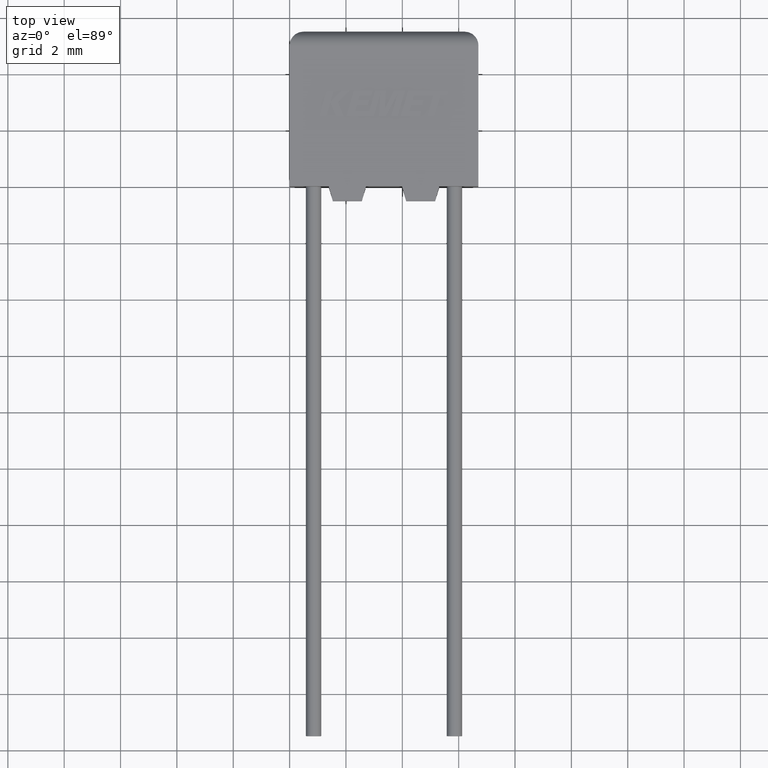
[diagram: clean part render]
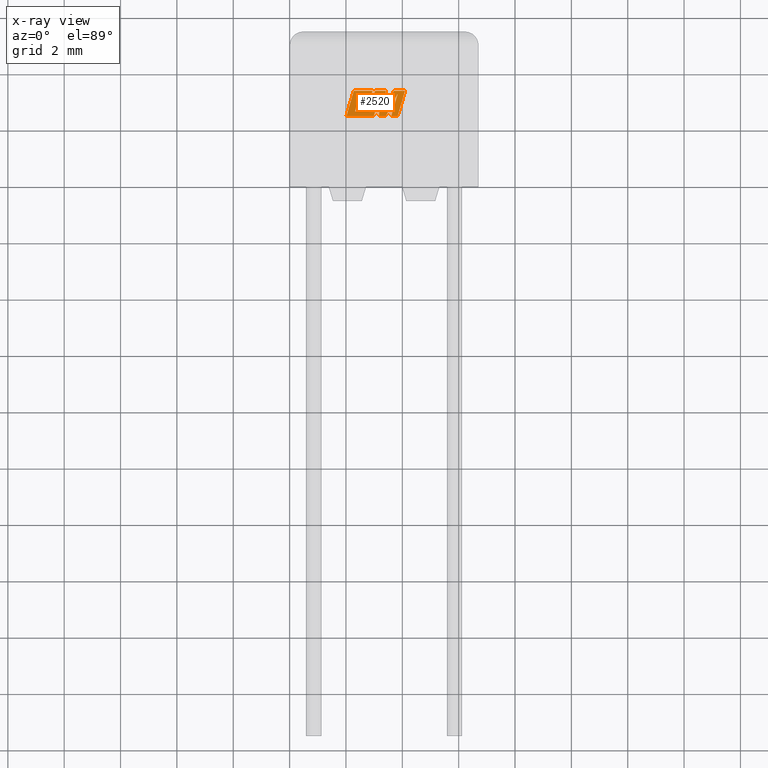
[diagram: x-ray — body ghosted, one internal face saturated and labeled with its STEP entity id]
A machine part, top view, then the same camera in x-ray: the body is ghosted and one INTERNAL B-rep face — a face not visible from any outside direction — is saturated and labeled: STEP entity #2520.
In plain terms, the highlighted planar face has unit normal (0, 0, -1).
Its self-contained STEP definition (entity closure, byte-faithful):
#1 = VERTEX_POINT ( 'NONE', #1530 ) ;
#13 = LINE ( 'NONE', #1092, #2583 ) ;
#15 = EDGE_CURVE ( 'NONE', #575, #2097, #369, .T. ) ;
#38 = CARTESIAN_POINT ( 'NONE',  ( 2.433353076285480000, 3.049281032540689400, 2.000000000000000000 ) ) ;
#44 = ORIENTED_EDGE ( 'NONE', *, *, #2538, .F. ) ;
#69 = VERTEX_POINT ( 'NONE', #3047 ) ;
#97 = CARTESIAN_POINT ( 'NONE',  ( 2.772326753900947100, 2.882800745730594600, 2.000000000000000000 ) ) ;
#138 = EDGE_CURVE ( 'NONE', #1232, #2970, #2354, .T. ) ;
#149 = ORIENTED_EDGE ( 'NONE', *, *, #1130, .F. ) ;
#155 = ORIENTED_EDGE ( 'NONE', *, *, #1944, .F. ) ;
#257 = LINE ( 'NONE', #2609, #1784 ) ;
#262 = LINE ( 'NONE', #856, #2844 ) ;
#277 = LINE ( 'NONE', #837, #1214 ) ;
#301 = VERTEX_POINT ( 'NONE', #2909 ) ;
#311 = CARTESIAN_POINT ( 'NONE',  ( 3.834926566020465400, 2.487649999999972400, 2.000000000000000000 ) ) ;
#328 = DIRECTION ( 'NONE',  ( -0.4443210308329058600, -0.8958676361827030400, 0.0000000000000000000 ) ) ;
#338 = DIRECTION ( 'NONE',  ( 0.2740217765954066600, 0.9617234872620595800, 0.0000000000000000000 ) ) ;
#339 = VERTEX_POINT ( 'NONE', #2653 ) ;
#369 = LINE ( 'NONE', #1044, #2238 ) ;
#373 = DIRECTION ( 'NONE',  ( 1.000000000000000000, 0.0000000000000000000, 0.0000000000000000000 ) ) ;
#389 = LINE ( 'NONE', #1645, #3138 ) ;
#397 = VERTEX_POINT ( 'NONE', #311 ) ;
#412 = ORIENTED_EDGE ( 'NONE', *, *, #1366, .F. ) ;
#473 = ORIENTED_EDGE ( 'NONE', *, *, #1995, .F. ) ;
#479 = VECTOR ( 'NONE', #2279, 1000.000000000000000 ) ;
#507 = VECTOR ( 'NONE', #338, 1000.000000000000100 ) ;
#533 = DIRECTION ( 'NONE',  ( -0.2765379750249960500, -0.9610029908221278100, 0.0000000000000000000 ) ) ;
#536 = VERTEX_POINT ( 'NONE', #2455 ) ;
#560 = CARTESIAN_POINT ( 'NONE',  ( 3.698866647946572600, 3.388197207796017200, 2.000000000000000000 ) ) ;
#567 = DIRECTION ( 'NONE',  ( -1.000000000000000000, 0.0000000000000000000, 0.0000000000000000000 ) ) ;
#569 = LINE ( 'NONE', #38, #1311 ) ;
#575 = VERTEX_POINT ( 'NONE', #1850 ) ;
#577 = CARTESIAN_POINT ( 'NONE',  ( 2.826513144333987700, 2.487649999999971500, 2.000000000000000000 ) ) ;
#578 = VECTOR ( 'NONE', #2057, 1000.000000000000000 ) ;
#585 = EDGE_CURVE ( 'NONE', #1316, #971, #13, .T. ) ;
#598 = CARTESIAN_POINT ( 'NONE',  ( 3.414412374134856900, 3.388197207796017200, 2.000000000000000000 ) ) ;
#602 = EDGE_CURVE ( 'NONE', #1, #2530, #771, .T. ) ;
#639 = ORIENTED_EDGE ( 'NONE', *, *, #1799, .F. ) ;
#640 = EDGE_CURVE ( 'NONE', #1162, #1232, #2537, .T. ) ;
#654 = LINE ( 'NONE', #577, #2453 ) ;
#681 = EDGE_CURVE ( 'NONE', #3183, #536, #3191, .T. ) ;
#693 = LINE ( 'NONE', #598, #2065 ) ;
#718 = FACE_OUTER_BOUND ( 'NONE', #976, .T. ) ;
#723 = LINE ( 'NONE', #1570, #2409 ) ;
#771 = LINE ( 'NONE', #1334, #858 ) ;
#779 = PLANE ( 'NONE',  #2916 ) ;
#837 = CARTESIAN_POINT ( 'NONE',  ( 2.986807820066870600, 2.487649999999972400, 2.000000000000000000 ) ) ;
#856 = CARTESIAN_POINT ( 'NONE',  ( 3.172069473137144600, 2.487649999999972400, 2.000000000000000000 ) ) ;
#858 = VECTOR ( 'NONE', #2833, 1000.000000000000000 ) ;
#866 = CARTESIAN_POINT ( 'NONE',  ( 2.433353076285480000, 3.049281032540689400, 2.000000000000000000 ) ) ;
#910 = VERTEX_POINT ( 'NONE', #2542 ) ;
#956 = ORIENTED_EDGE ( 'NONE', *, *, #1667, .F. ) ;
#971 = VERTEX_POINT ( 'NONE', #1569 ) ;
#976 = EDGE_LOOP ( 'NONE', ( #3159, #1005, #1741, #149, #2182, #2486, #1372, #412, #155, #1779, #2604, #956, #44, #2854, #3089, #2021, #3123, #1400, #1780, #473, #639, #2514, #2091 ) ) ;
#1002 = CARTESIAN_POINT ( 'NONE',  ( 2.772326753900947100, 2.882800745730594600, 2.000000000000000000 ) ) ;
#1005 = ORIENTED_EDGE ( 'NONE', *, *, #1847, .F. ) ;
#1024 = DIRECTION ( 'NONE',  ( 0.2793947940878288000, 0.9601763114327596100, 0.0000000000000000000 ) ) ;
#1027 = CARTESIAN_POINT ( 'NONE',  ( 2.819878467922845000, 3.049281032540689400, 2.000000000000000000 ) ) ;
#1041 = LINE ( 'NONE', #1027, #2012 ) ;
#1044 = CARTESIAN_POINT ( 'NONE',  ( 2.275782917164932900, 3.388197207796017200, 2.000000000000000000 ) ) ;
#1092 = CARTESIAN_POINT ( 'NONE',  ( 3.412147305119253000, 2.487649999999972400, 2.000000000000000000 ) ) ;
#1123 = DIRECTION ( 'NONE',  ( 0.2759782365590801600, 0.9611638845408936300, 0.0000000000000000000 ) ) ;
#1130 = EDGE_CURVE ( 'NONE', #971, #2330, #1762, .T. ) ;
#1150 = DIRECTION ( 'NONE',  ( -0.2762517575166160700, -0.9610853065513907900, 0.0000000000000000000 ) ) ;
#1162 = VERTEX_POINT ( 'NONE', #560 ) ;
#1180 = CARTESIAN_POINT ( 'NONE',  ( 2.016641682812180500, 2.487649999999971500, 2.000000000000000000 ) ) ;
#1212 = EDGE_CURVE ( 'NONE', #910, #1162, #1992, .T. ) ;
#1214 = VECTOR ( 'NONE', #1123, 1000.000000000000100 ) ;
#1229 = VERTEX_POINT ( 'NONE', #1577 ) ;
#1232 = VERTEX_POINT ( 'NONE', #1788 ) ;
#1239 = VECTOR ( 'NONE', #3169, 1000.000000000000000 ) ;
#1269 = VERTEX_POINT ( 'NONE', #2311 ) ;
#1298 = CARTESIAN_POINT ( 'NONE',  ( 0.03041257595100179500, -2.509421354517931100, 1.999999999999999100 ) ) ;
#1309 = DIRECTION ( 'NONE',  ( 0.0000000000000000000, 0.0000000000000000000, -1.000000000000000000 ) ) ;
#1311 = VECTOR ( 'NONE', #1024, 1000.000000000000100 ) ;
#1316 = VERTEX_POINT ( 'NONE', #2614 ) ;
#1334 = CARTESIAN_POINT ( 'NONE',  ( 2.821296859482047600, 2.658979652557016400, 2.000000000000000000 ) ) ;
#1345 = DIRECTION ( 'NONE',  ( 0.2746459304916903900, 0.9615454294334477800, 0.0000000000000000000 ) ) ;
#1366 = EDGE_CURVE ( 'NONE', #339, #301, #277, .T. ) ;
#1372 = ORIENTED_EDGE ( 'NONE', *, *, #2475, .F. ) ;
#1400 = ORIENTED_EDGE ( 'NONE', *, *, #1776, .F. ) ;
#1422 = CARTESIAN_POINT ( 'NONE',  ( 2.385856126416511500, 2.882800745730594600, 2.000000000000000000 ) ) ;
#1436 = LINE ( 'NONE', #2213, #2093 ) ;
#1446 = VERTEX_POINT ( 'NONE', #866 ) ;
#1453 = CARTESIAN_POINT ( 'NONE',  ( 2.892391682866847000, 3.216782670803429100, 2.000000000000000000 ) ) ;
#1462 = DIRECTION ( 'NONE',  ( -1.000000000000000000, 0.0000000000000000000, 0.0000000000000000000 ) ) ;
#1530 = CARTESIAN_POINT ( 'NONE',  ( 2.821296859482047600, 2.658979652557016400, 2.000000000000000000 ) ) ;
#1544 = LINE ( 'NONE', #3202, #2989 ) ;
#1569 = CARTESIAN_POINT ( 'NONE',  ( 3.837423811395653600, 3.293244381174459200, 2.000000000000000000 ) ) ;
#1570 = CARTESIAN_POINT ( 'NONE',  ( 3.834926566020465400, 2.487649999999972400, 2.000000000000000000 ) ) ;
#1577 = CARTESIAN_POINT ( 'NONE',  ( 3.030901178550859500, 3.388197207796017200, 2.000000000000000000 ) ) ;
#1603 = DIRECTION ( 'NONE',  ( -1.000000000000000000, 0.0000000000000000000, 0.0000000000000000000 ) ) ;
#1645 = CARTESIAN_POINT ( 'NONE',  ( 3.030901178550859500, 3.388197207796017200, 2.000000000000000000 ) ) ;
#1667 = EDGE_CURVE ( 'NONE', #2139, #2846, #1676, .T. ) ;
#1676 = LINE ( 'NONE', #3000, #3004 ) ;
#1692 = VECTOR ( 'NONE', #1345, 1000.000000000000200 ) ;
#1741 = ORIENTED_EDGE ( 'NONE', *, *, #2292, .F. ) ;
#1762 = LINE ( 'NONE', #2785, #2227 ) ;
#1766 = DIRECTION ( 'NONE',  ( -0.2760118818968562100, -0.9611542233438689100, 0.0000000000000000000 ) ) ;
#1776 = EDGE_CURVE ( 'NONE', #2530, #69, #2299, .T. ) ;
#1779 = ORIENTED_EDGE ( 'NONE', *, *, #15, .F. ) ;
#1780 = ORIENTED_EDGE ( 'NONE', *, *, #602, .F. ) ;
#1784 = VECTOR ( 'NONE', #373, 1000.000000000000000 ) ;
#1786 = DIRECTION ( 'NONE',  ( -1.000000000000000000, 0.0000000000000000000, 0.0000000000000000000 ) ) ;
#1788 = CARTESIAN_POINT ( 'NONE',  ( 3.379779903638572100, 2.744834711934450500, 2.000000000000000000 ) ) ;
#1799 = EDGE_CURVE ( 'NONE', #2970, #1229, #693, .T. ) ;
#1826 = DIRECTION ( 'NONE',  ( 0.2763139702539116300, 0.9610674221107072800, 0.0000000000000000000 ) ) ;
#1829 = CARTESIAN_POINT ( 'NONE',  ( 3.698866647946572600, 3.388197207796017200, 2.000000000000000000 ) ) ;
#1847 = EDGE_CURVE ( 'NONE', #397, #910, #723, .T. ) ;
#1850 = CARTESIAN_POINT ( 'NONE',  ( 2.275782917164932900, 3.388197207796017200, 2.000000000000000000 ) ) ;
#1936 = DIRECTION ( 'NONE',  ( -0.05596501978068205200, -0.9984327301130245800, 0.0000000000000000000 ) ) ;
#1944 = EDGE_CURVE ( 'NONE', #2097, #339, #654, .T. ) ;
#1967 = VECTOR ( 'NONE', #2617, 1000.000000000000200 ) ;
#1977 = LINE ( 'NONE', #1422, #1239 ) ;
#1992 = LINE ( 'NONE', #3057, #479 ) ;
#1995 = EDGE_CURVE ( 'NONE', #1229, #1, #389, .T. ) ;
#2012 = VECTOR ( 'NONE', #1786, 1000.000000000000000 ) ;
#2021 = ORIENTED_EDGE ( 'NONE', *, *, #681, .F. ) ;
#2025 = CARTESIAN_POINT ( 'NONE',  ( 2.322083270285529200, 2.658979652557016400, 2.000000000000000000 ) ) ;
#2057 = DIRECTION ( 'NONE',  ( 1.000000000000000000, 0.0000000000000000000, 0.0000000000000000000 ) ) ;
#2065 = VECTOR ( 'NONE', #1603, 1000.000000000000000 ) ;
#2077 = DIRECTION ( 'NONE',  ( 1.000000000000000000, 4.833865254349440500E-015, 0.0000000000000000000 ) ) ;
#2091 = ORIENTED_EDGE ( 'NONE', *, *, #640, .F. ) ;
#2093 = VECTOR ( 'NONE', #1936, 1000.000000000000200 ) ;
#2097 = VERTEX_POINT ( 'NONE', #1180 ) ;
#2139 = VERTEX_POINT ( 'NONE', #1453 ) ;
#2142 = CARTESIAN_POINT ( 'NONE',  ( 2.941077014855238800, 3.388197207796017200, 2.000000000000000000 ) ) ;
#2182 = ORIENTED_EDGE ( 'NONE', *, *, #585, .F. ) ;
#2213 = CARTESIAN_POINT ( 'NONE',  ( 3.217008937061694300, 3.289383508392148800, 2.000000000000000000 ) ) ;
#2227 = VECTOR ( 'NONE', #1766, 1000.000000000000200 ) ;
#2238 = VECTOR ( 'NONE', #533, 1000.000000000000100 ) ;
#2266 = CARTESIAN_POINT ( 'NONE',  ( 3.606083600019448300, 2.487649999999972400, 2.000000000000000000 ) ) ;
#2279 = DIRECTION ( 'NONE',  ( -1.000000000000000000, 0.0000000000000000000, 0.0000000000000000000 ) ) ;
#2292 = EDGE_CURVE ( 'NONE', #2330, #397, #3209, .T. ) ;
#2299 = LINE ( 'NONE', #2543, #507 ) ;
#2311 = CARTESIAN_POINT ( 'NONE',  ( 2.482093172426739000, 3.216782670803429100, 2.000000000000000000 ) ) ;
#2330 = VERTEX_POINT ( 'NONE', #2539 ) ;
#2331 = EDGE_CURVE ( 'NONE', #536, #1446, #1041, .T. ) ;
#2354 = LINE ( 'NONE', #2860, #1967 ) ;
#2399 = EDGE_CURVE ( 'NONE', #2594, #1316, #262, .T. ) ;
#2409 = VECTOR ( 'NONE', #1826, 1000.000000000000200 ) ;
#2437 = EDGE_CURVE ( 'NONE', #69, #3183, #1977, .T. ) ;
#2453 = VECTOR ( 'NONE', #2077, 1000.000000000000000 ) ;
#2455 = CARTESIAN_POINT ( 'NONE',  ( 2.819878467922845000, 3.049281032540689400, 2.000000000000000000 ) ) ;
#2457 = CARTESIAN_POINT ( 'NONE',  ( 3.414412374134856900, 3.388197207796017200, 2.000000000000000000 ) ) ;
#2474 = CARTESIAN_POINT ( 'NONE',  ( 3.172069473137144600, 2.487649999999972400, 2.000000000000000000 ) ) ;
#2475 = EDGE_CURVE ( 'NONE', #301, #2594, #1436, .T. ) ;
#2486 = ORIENTED_EDGE ( 'NONE', *, *, #2399, .F. ) ;
#2514 = ORIENTED_EDGE ( 'NONE', *, *, #138, .F. ) ;
#2520 = ADVANCED_FACE ( 'NONE', ( #718 ), #779, .T. ) ;
#2530 = VERTEX_POINT ( 'NONE', #2025 ) ;
#2537 = LINE ( 'NONE', #1829, #3105 ) ;
#2538 = EDGE_CURVE ( 'NONE', #1269, #2139, #257, .T. ) ;
#2539 = CARTESIAN_POINT ( 'NONE',  ( 3.606083600019448300, 2.487649999999972400, 2.000000000000000000 ) ) ;
#2542 = CARTESIAN_POINT ( 'NONE',  ( 4.093840528415223700, 3.388197207796017200, 2.000000000000000000 ) ) ;
#2543 = CARTESIAN_POINT ( 'NONE',  ( 2.322083270285529200, 2.658979652557016400, 2.000000000000000000 ) ) ;
#2583 = VECTOR ( 'NONE', #2593, 1000.000000000000100 ) ;
#2593 = DIRECTION ( 'NONE',  ( 0.4668459304955212000, 0.8843386665637611400, 0.0000000000000000000 ) ) ;
#2594 = VERTEX_POINT ( 'NONE', #2474 ) ;
#2604 = ORIENTED_EDGE ( 'NONE', *, *, #2717, .F. ) ;
#2609 = CARTESIAN_POINT ( 'NONE',  ( 2.482093172426739000, 3.216782670803429100, 2.000000000000000000 ) ) ;
#2614 = CARTESIAN_POINT ( 'NONE',  ( 3.412147305119253000, 2.487649999999972400, 2.000000000000000000 ) ) ;
#2617 = DIRECTION ( 'NONE',  ( 0.05375259206908267900, 0.9985542843760947300, 0.0000000000000000000 ) ) ;
#2653 = CARTESIAN_POINT ( 'NONE',  ( 2.986807820066870600, 2.487649999999972400, 2.000000000000000000 ) ) ;
#2717 = EDGE_CURVE ( 'NONE', #2846, #575, #1544, .T. ) ;
#2749 = DIRECTION ( 'NONE',  ( 0.2732148821745925000, 0.9619530280415585800, 0.0000000000000000000 ) ) ;
#2785 = CARTESIAN_POINT ( 'NONE',  ( 3.837423811395653600, 3.293244381174459200, 2.000000000000000000 ) ) ;
#2833 = DIRECTION ( 'NONE',  ( -1.000000000000000000, 0.0000000000000000000, 0.0000000000000000000 ) ) ;
#2844 = VECTOR ( 'NONE', #2901, 1000.000000000000000 ) ;
#2846 = VERTEX_POINT ( 'NONE', #2142 ) ;
#2854 = ORIENTED_EDGE ( 'NONE', *, *, #3102, .F. ) ;
#2860 = CARTESIAN_POINT ( 'NONE',  ( 3.379779903638572100, 2.744834711934450500, 2.000000000000000000 ) ) ;
#2901 = DIRECTION ( 'NONE',  ( 1.000000000000000000, 0.0000000000000000000, 0.0000000000000000000 ) ) ;
#2909 = CARTESIAN_POINT ( 'NONE',  ( 3.217008937061694300, 3.289383508392148800, 2.000000000000000000 ) ) ;
#2916 = AXIS2_PLACEMENT_3D ( 'NONE', #1298, #1309, #567 ) ;
#2970 = VERTEX_POINT ( 'NONE', #2457 ) ;
#2989 = VECTOR ( 'NONE', #1462, 1000.000000000000000 ) ;
#3000 = CARTESIAN_POINT ( 'NONE',  ( 2.892391682866847000, 3.216782670803429100, 2.000000000000000000 ) ) ;
#3004 = VECTOR ( 'NONE', #2749, 1000.000000000000100 ) ;
#3047 = CARTESIAN_POINT ( 'NONE',  ( 2.385856126416511500, 2.882800745730594600, 2.000000000000000000 ) ) ;
#3057 = CARTESIAN_POINT ( 'NONE',  ( 4.093840528415223700, 3.388197207796017200, 2.000000000000000000 ) ) ;
#3089 = ORIENTED_EDGE ( 'NONE', *, *, #2331, .F. ) ;
#3102 = EDGE_CURVE ( 'NONE', #1446, #1269, #569, .T. ) ;
#3105 = VECTOR ( 'NONE', #328, 1000.000000000000100 ) ;
#3123 = ORIENTED_EDGE ( 'NONE', *, *, #2437, .F. ) ;
#3138 = VECTOR ( 'NONE', #1150, 1000.000000000000000 ) ;
#3159 = ORIENTED_EDGE ( 'NONE', *, *, #1212, .F. ) ;
#3169 = DIRECTION ( 'NONE',  ( 1.000000000000000000, 0.0000000000000000000, 0.0000000000000000000 ) ) ;
#3183 = VERTEX_POINT ( 'NONE', #1002 ) ;
#3191 = LINE ( 'NONE', #97, #1692 ) ;
#3202 = CARTESIAN_POINT ( 'NONE',  ( 2.941077014855238800, 3.388197207796017200, 2.000000000000000000 ) ) ;
#3209 = LINE ( 'NONE', #2266, #578 ) ;